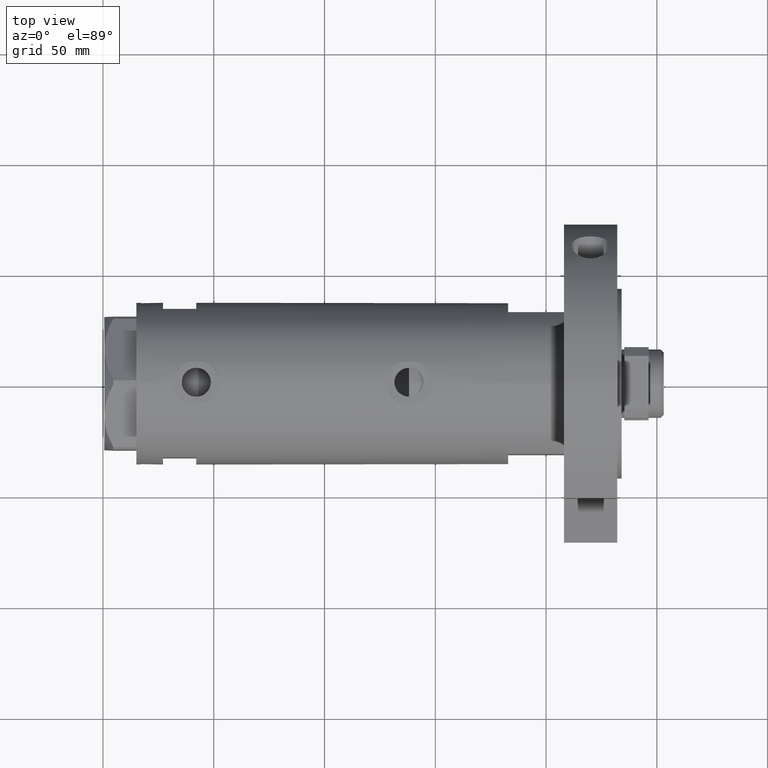
[diagram: clean part render]
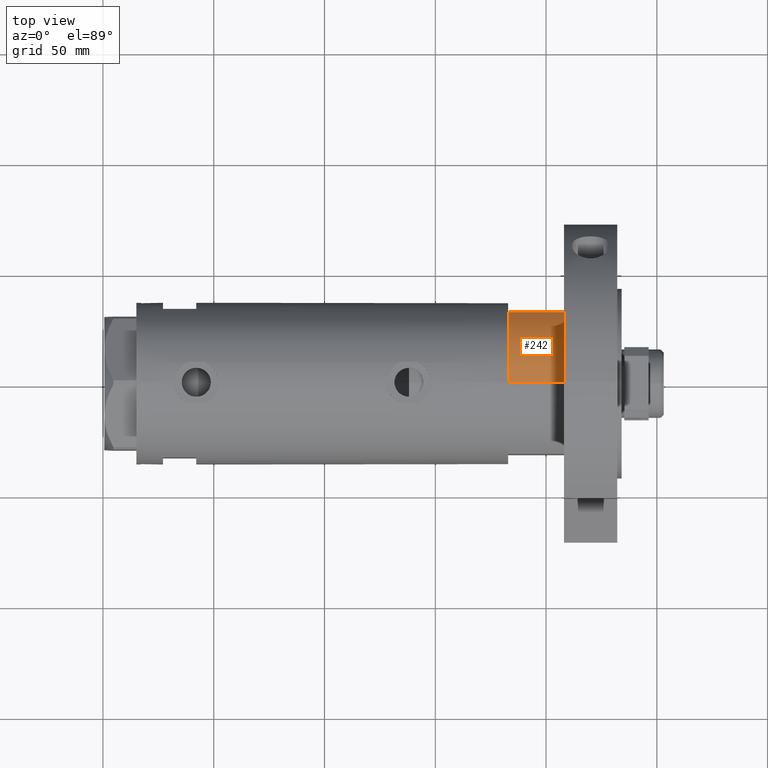
[diagram: same view with one face highlighted and labeled with its STEP entity id]
A machine part, top view. The second image highlights one B-rep face of the part: STEP entity #242.
In plain terms, the highlighted cylindrical surface (partial cylindrical patch) has radius 36.5 mm, axis along (-1, -0, 0).
Its self-contained STEP definition (entity closure, byte-faithful):
#156 = VECTOR ( 'NONE', #3203, 1000.000000000000000 ) ;
#242 = ADVANCED_FACE ( 'NONE', ( #4676 ), #7260, .T. ) ;
#294 = EDGE_CURVE ( 'NONE', #3681, #4033, #3509, .T. ) ;
#364 = LINE ( 'NONE', #3998, #6527 ) ;
#645 = LINE ( 'NONE', #3122, #156 ) ;
#736 = DIRECTION ( 'NONE',  ( 1.000000000000000000, 0.000000000000000000, 0.000000000000000000 ) ) ;
#747 = CARTESIAN_POINT ( 'NONE',  ( 0.000000000000000000, 0.000000000000000000, 25.19999999999999929 ) ) ;
#787 = DIRECTION ( 'NONE',  ( -0.000000000000000000, -0.000000000000000000, -1.000000000000000000 ) ) ;
#1061 = EDGE_CURVE ( 'NONE', #4033, #1775, #645, .T. ) ;
#1365 = CARTESIAN_POINT ( 'NONE',  ( 0.000000000000000000, 0.000000000000000000, 0.000000000000000000 ) ) ;
#1775 = VERTEX_POINT ( 'NONE', #2541 ) ;
#2079 = AXIS2_PLACEMENT_3D ( 'NONE', #1365, #3918, #736 ) ;
#2328 = CARTESIAN_POINT ( 'NONE',  ( 0.000000000000000000, 0.000000000000000000, 25.19999999999999929 ) ) ;
#2541 = CARTESIAN_POINT ( 'NONE',  ( -36.50000000000000000, 0.000000000000000000, 0.000000000000000000 ) ) ;
#2710 = AXIS2_PLACEMENT_3D ( 'NONE', #2328, #3005, #2923 ) ;
#2762 = CIRCLE ( 'NONE', #2079, 36.50000000000000000 ) ;
#2923 = DIRECTION ( 'NONE',  ( 1.000000000000000000, 0.000000000000000000, 0.000000000000000000 ) ) ;
#3005 = DIRECTION ( 'NONE',  ( 0.000000000000000000, 0.000000000000000000, 1.000000000000000000 ) ) ;
#3122 = CARTESIAN_POINT ( 'NONE',  ( -36.50000000000000000, 0.000000000000000000, 25.19999999999999929 ) ) ;
#3203 = DIRECTION ( 'NONE',  ( -0.000000000000000000, -0.000000000000000000, -1.000000000000000000 ) ) ;
#3368 = DIRECTION ( 'NONE',  ( -0.000000000000000000, -0.000000000000000000, 1.000000000000000000 ) ) ;
#3509 = CIRCLE ( 'NONE', #2710, 36.50000000000000000 ) ;
#3681 = VERTEX_POINT ( 'NONE', #5547 ) ;
#3918 = DIRECTION ( 'NONE',  ( 0.000000000000000000, 0.000000000000000000, 1.000000000000000000 ) ) ;
#3998 = CARTESIAN_POINT ( 'NONE',  ( -17.55704986607943141, 32.00000000000000000, 0.000000000000000000 ) ) ;
#4033 = VERTEX_POINT ( 'NONE', #4682 ) ;
#4161 = ORIENTED_EDGE ( 'NONE', *, *, #5991, .F. ) ;
#4163 = EDGE_LOOP ( 'NONE', ( #7101, #6447, #4161, #5283 ) ) ;
#4676 = FACE_OUTER_BOUND ( 'NONE', #4163, .T. ) ;
#4682 = CARTESIAN_POINT ( 'NONE',  ( -36.50000000000000000, 0.000000000000000000, 25.19999999999999929 ) ) ;
#4834 = CARTESIAN_POINT ( 'NONE',  ( -17.55704986607943141, 32.00000000000000000, 0.000000000000000000 ) ) ;
#5283 = ORIENTED_EDGE ( 'NONE', *, *, #7324, .T. ) ;
#5547 = CARTESIAN_POINT ( 'NONE',  ( -17.55704986607943496, 32.00000000000000000, 25.19999999999999929 ) ) ;
#5920 = AXIS2_PLACEMENT_3D ( 'NONE', #747, #787, #7982 ) ;
#5991 = EDGE_CURVE ( 'NONE', #7632, #3681, #364, .T. ) ;
#6447 = ORIENTED_EDGE ( 'NONE', *, *, #294, .F. ) ;
#6527 = VECTOR ( 'NONE', #3368, 1000.000000000000000 ) ;
#7101 = ORIENTED_EDGE ( 'NONE', *, *, #1061, .F. ) ;
#7260 = CYLINDRICAL_SURFACE ( 'NONE', #5920, 36.50000000000000000 ) ;
#7324 = EDGE_CURVE ( 'NONE', #7632, #1775, #2762, .T. ) ;
#7632 = VERTEX_POINT ( 'NONE', #4834 ) ;
#7982 = DIRECTION ( 'NONE',  ( -1.000000000000000000, 0.000000000000000000, 0.000000000000000000 ) ) ;